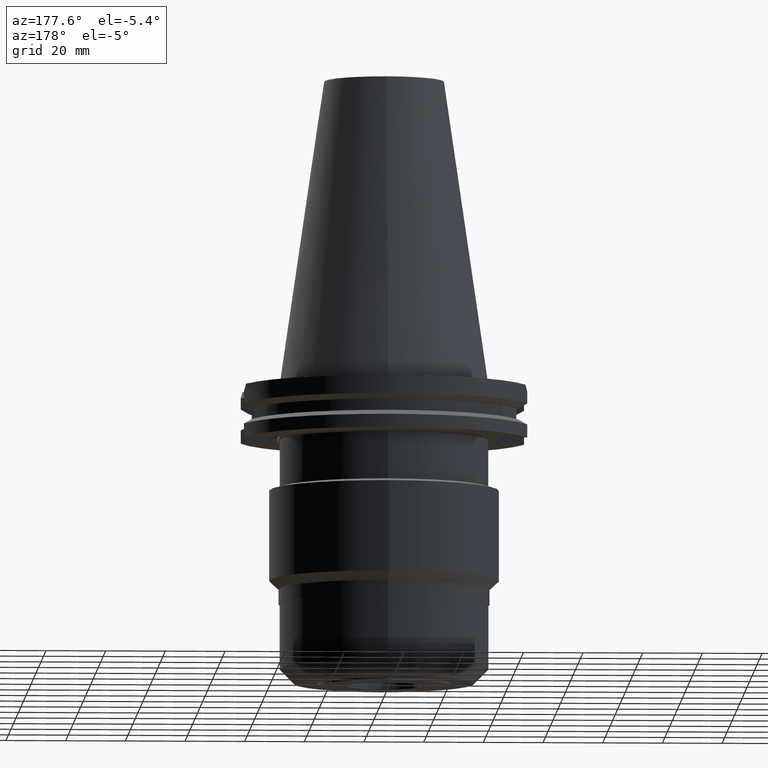
[diagram: clean part render]
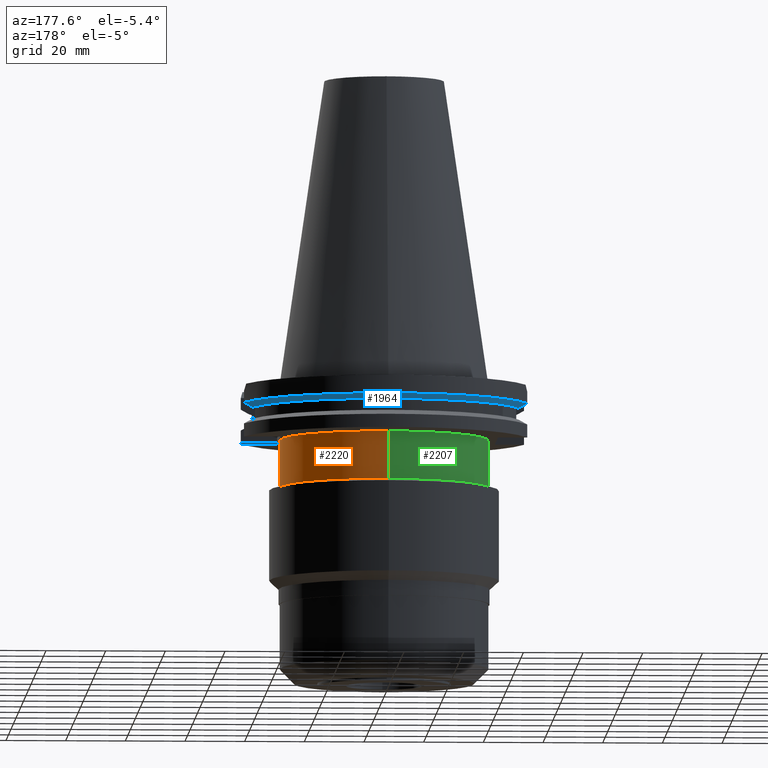
[diagram: same view with three faces highlighted in distinct colors, each labeled with its STEP entity id]
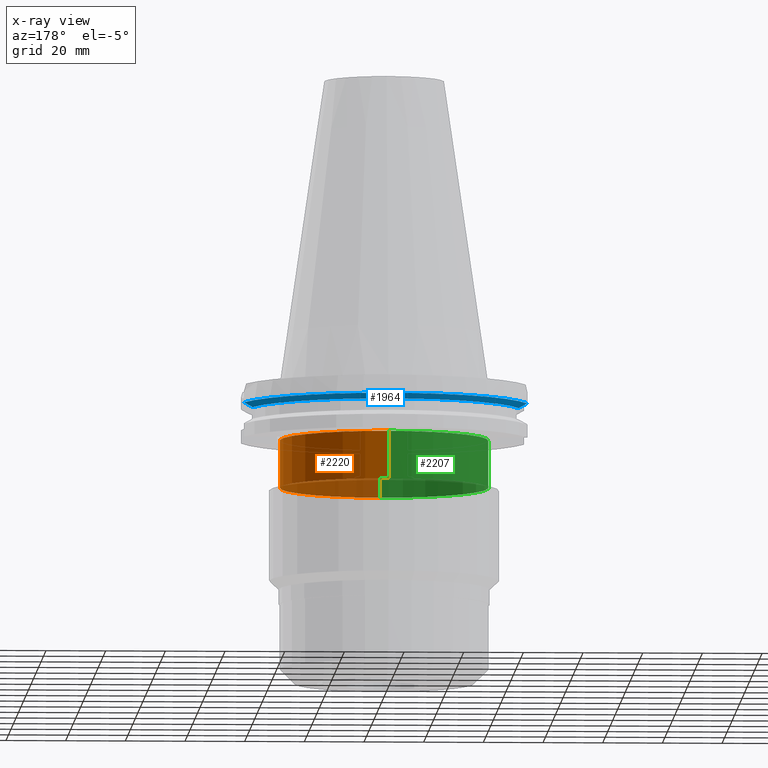
[diagram: x-ray of the same camera — body ghosted, the three highlighted faces saturated]
A machine part, auxiliary view with three faces highlighted in distinct colors.
The next image is the same camera in x-ray (body ghosted, the three faces saturated) — at least one of them is partly hidden behind the body in this view.
Their STEP definitions:

[orange] entity #2220 — the highlighted cylindrical surface (partial cylindrical patch) has radius 34.925 mm, axis along (0, 0, 1).
#259=CARTESIAN_POINT('',(0.E0,0.E0,-1.905E1));
#260=DIRECTION('',(0.E0,0.E0,-1.E0));
#261=DIRECTION('',(0.E0,1.E0,0.E0));
#262=AXIS2_PLACEMENT_3D('',#259,#260,#261);
#848=DIRECTION('',(0.E0,0.E0,-1.E0));
#849=VECTOR('',#848,1.595E1);
#850=CARTESIAN_POINT('',(0.E0,-3.4925E1,-1.905E1));
#851=LINE('',#850,#849);
#855=DIRECTION('',(0.E0,0.E0,-1.E0));
#856=VECTOR('',#855,1.595E1);
#857=CARTESIAN_POINT('',(0.E0,3.4925E1,-1.905E1));
#858=LINE('',#857,#856);
#877=CARTESIAN_POINT('',(0.E0,0.E0,-3.5E1));
#878=DIRECTION('',(0.E0,0.E0,1.E0));
#879=DIRECTION('',(0.E0,-1.E0,0.E0));
#880=AXIS2_PLACEMENT_3D('',#877,#878,#879);
#1424=CARTESIAN_POINT('',(0.E0,-3.4925E1,-1.905E1));
#1425=CARTESIAN_POINT('',(0.E0,3.4925E1,-1.905E1));
#1426=VERTEX_POINT('',#1424);
#1427=VERTEX_POINT('',#1425);
#1428=CARTESIAN_POINT('',(0.E0,3.4925E1,-3.5E1));
#1429=VERTEX_POINT('',#1428);
#1430=CARTESIAN_POINT('',(0.E0,-3.4925E1,-3.5E1));
#1431=VERTEX_POINT('',#1430);
#2208=CARTESIAN_POINT('',(0.E0,0.E0,-1.1176E2));
#2209=DIRECTION('',(0.E0,0.E0,1.E0));
#2210=DIRECTION('',(0.E0,1.E0,0.E0));
#2211=AXIS2_PLACEMENT_3D('',#2208,#2209,#2210);
#2212=CYLINDRICAL_SURFACE('',#2211,3.4925E1);
#2213=ORIENTED_EDGE('',*,*,#2198,.T.);
#2215=ORIENTED_EDGE('',*,*,#2214,.F.);
#2216=ORIENTED_EDGE('',*,*,#2201,.F.);
#2217=ORIENTED_EDGE('',*,*,#1746,.F.);
#2218=EDGE_LOOP('',(#2213,#2215,#2216,#2217));
#2219=FACE_OUTER_BOUND('',#2218,.F.);
#263=CIRCLE('',#262,3.4925E1);
#881=CIRCLE('',#880,3.4925E1);
#1746=EDGE_CURVE('',#1427,#1426,#263,.T.);
#2198=EDGE_CURVE('',#1427,#1429,#858,.T.);
#2201=EDGE_CURVE('',#1426,#1431,#851,.T.);
#2214=EDGE_CURVE('',#1431,#1429,#881,.T.);
#2220=ADVANCED_FACE('',(#2219),#2212,.T.);

[blue] entity #1964 — the highlighted conical surface has half-angle 60 deg.
#493=CARTESIAN_POINT('',(0.E0,0.E0,-9.207500000003E0));
#494=DIRECTION('',(0.E0,0.E0,1.E0));
#495=DIRECTION('',(9.602855947900E-1,2.790189535476E-1,0.E0));
#496=AXIS2_PLACEMENT_3D('',#493,#494,#495);
#501=CARTESIAN_POINT('',(0.E0,0.E0,-9.207500000003E0));
#502=DIRECTION('',(0.E0,0.E0,1.E0));
#503=DIRECTION('',(0.E0,1.E0,0.E0));
#504=AXIS2_PLACEMENT_3D('',#501,#502,#503);
#525=CARTESIAN_POINT('',(4.458657636813E1,1.2955E1,-9.207500000001E0));
#526=CARTESIAN_POINT('',(4.490806163993E1,1.2955E1,-9.029261766981E0));
#527=CARTESIAN_POINT('',(4.555077636711E1,1.2955E1,-8.672605903566E0));
#528=CARTESIAN_POINT('',(4.651414584907E1,1.2955E1,-8.137199213206E0));
#529=CARTESIAN_POINT('',(4.715593427837E1,1.2955E1,-7.780001752701E0));
#530=CARTESIAN_POINT('',(4.747671146204E1,1.2955E1,-7.601333230925E0));
#535=CARTESIAN_POINT('',(0.E0,0.E0,-7.601333230926E0));
#536=DIRECTION('',(0.E0,0.E0,1.E0));
#537=DIRECTION('',(9.647287063661E-1,2.632461264923E-1,0.E0));
#538=AXIS2_PLACEMENT_3D('',#535,#536,#537);
#543=CARTESIAN_POINT('',(0.E0,0.E0,-7.601333230926E0));
#544=DIRECTION('',(0.E0,0.E0,1.E0));
#545=DIRECTION('',(0.E0,1.E0,0.E0));
#546=AXIS2_PLACEMENT_3D('',#543,#544,#545);
#551=CARTESIAN_POINT('',(-4.747671146204E1,1.2955E1,-7.601333230925E0));
#552=CARTESIAN_POINT('',(-4.715593427836E1,1.2955E1,-7.780001752708E0));
#553=CARTESIAN_POINT('',(-4.651414584905E1,1.2955E1,-8.137199213222E0));
#554=CARTESIAN_POINT('',(-4.555077636708E1,1.2955E1,-8.672605903582E0));
#555=CARTESIAN_POINT('',(-4.490806163991E1,1.2955E1,-9.029261766988E0));
#556=CARTESIAN_POINT('',(-4.458657636813E1,1.2955E1,-9.207500000001E0));
#1510=CARTESIAN_POINT('',(4.747671146204E1,1.2955E1,-7.601333230925E0));
#1511=VERTEX_POINT('',#1510);
#1512=VERTEX_POINT('',#525);
#1530=CARTESIAN_POINT('',(-4.747671146204E1,1.2955E1,-7.601333230925E0));
#1531=VERTEX_POINT('',#1530);
#1532=CARTESIAN_POINT('',(0.E0,4.92125E1,-7.601333230926E0));
#1533=VERTEX_POINT('',#1532);
#1571=CARTESIAN_POINT('',(-4.458657636813E1,1.2955E1,-9.207500000001E0));
#1572=VERTEX_POINT('',#1571);
#1587=CARTESIAN_POINT('',(0.E0,4.643053755053E1,-9.207500000003E0));
#1588=VERTEX_POINT('',#1587);
#1951=CARTESIAN_POINT('',(0.E0,0.E0,-8.404416615464E0));
#1952=DIRECTION('',(0.E0,0.E0,1.E0));
#1953=DIRECTION('',(0.E0,1.E0,0.E0));
#1954=AXIS2_PLACEMENT_3D('',#1951,#1952,#1953);
#1955=CONICAL_SURFACE('',#1954,4.782151877527E1,6.E1);
#1956=ORIENTED_EDGE('',*,*,#1762,.T.);
#1957=ORIENTED_EDGE('',*,*,#1805,.T.);
#1958=ORIENTED_EDGE('',*,*,#1803,.T.);
#1959=ORIENTED_EDGE('',*,*,#1863,.T.);
#1960=ORIENTED_EDGE('',*,*,#1943,.F.);
#1961=ORIENTED_EDGE('',*,*,#1941,.F.);
#1962=EDGE_LOOP('',(#1956,#1957,#1958,#1959,#1960,#1961));
#1963=FACE_OUTER_BOUND('',#1962,.F.);
#497=CIRCLE('',#496,4.643053755053E1);
#505=CIRCLE('',#504,4.643053755053E1);
#531=B_SPLINE_CURVE_WITH_KNOTS('',3,(#525,#526,#527,#528,#529,#530),
.UNSPECIFIED.,.F.,.F.,(4,1,1,4),(0.E0,3.333333333333E-1,6.666666666667E-1,1.E0),
.UNSPECIFIED.);
#539=CIRCLE('',#538,4.92125E1);
#547=CIRCLE('',#546,4.92125E1);
#557=B_SPLINE_CURVE_WITH_KNOTS('',3,(#551,#552,#553,#554,#555,#556),
.UNSPECIFIED.,.F.,.F.,(4,1,1,4),(0.E0,3.333333333333E-1,6.666666666667E-1,1.E0),
.UNSPECIFIED.);
#1762=EDGE_CURVE('',#1512,#1511,#531,.T.);
#1803=EDGE_CURVE('',#1533,#1531,#547,.T.);
#1805=EDGE_CURVE('',#1511,#1533,#539,.T.);
#1863=EDGE_CURVE('',#1531,#1572,#557,.T.);
#1941=EDGE_CURVE('',#1512,#1588,#497,.T.);
#1943=EDGE_CURVE('',#1588,#1572,#505,.T.);
#1964=ADVANCED_FACE('',(#1963),#1955,.T.);

[green] entity #2207 — the highlighted cylindrical surface (partial cylindrical patch) has radius 34.925 mm, axis along (0, 0, 1).
#251=CARTESIAN_POINT('',(0.E0,0.E0,-1.905E1));
#252=DIRECTION('',(0.E0,0.E0,-1.E0));
#253=DIRECTION('',(0.E0,-1.E0,0.E0));
#254=AXIS2_PLACEMENT_3D('',#251,#252,#253);
#848=DIRECTION('',(0.E0,0.E0,-1.E0));
#849=VECTOR('',#848,1.595E1);
#850=CARTESIAN_POINT('',(0.E0,-3.4925E1,-1.905E1));
#851=LINE('',#850,#849);
#855=DIRECTION('',(0.E0,0.E0,-1.E0));
#856=VECTOR('',#855,1.595E1);
#857=CARTESIAN_POINT('',(0.E0,3.4925E1,-1.905E1));
#858=LINE('',#857,#856);
#885=CARTESIAN_POINT('',(0.E0,0.E0,-3.5E1));
#886=DIRECTION('',(0.E0,0.E0,1.E0));
#887=DIRECTION('',(0.E0,1.E0,0.E0));
#888=AXIS2_PLACEMENT_3D('',#885,#886,#887);
#1424=CARTESIAN_POINT('',(0.E0,-3.4925E1,-1.905E1));
#1425=CARTESIAN_POINT('',(0.E0,3.4925E1,-1.905E1));
#1426=VERTEX_POINT('',#1424);
#1427=VERTEX_POINT('',#1425);
#1428=CARTESIAN_POINT('',(0.E0,3.4925E1,-3.5E1));
#1429=VERTEX_POINT('',#1428);
#1430=CARTESIAN_POINT('',(0.E0,-3.4925E1,-3.5E1));
#1431=VERTEX_POINT('',#1430);
#2193=CARTESIAN_POINT('',(0.E0,0.E0,-1.1176E2));
#2194=DIRECTION('',(0.E0,0.E0,1.E0));
#2195=DIRECTION('',(0.E0,1.E0,0.E0));
#2196=AXIS2_PLACEMENT_3D('',#2193,#2194,#2195);
#2197=CYLINDRICAL_SURFACE('',#2196,3.4925E1);
#2199=ORIENTED_EDGE('',*,*,#2198,.F.);
#2200=ORIENTED_EDGE('',*,*,#1744,.F.);
#2202=ORIENTED_EDGE('',*,*,#2201,.T.);
#2204=ORIENTED_EDGE('',*,*,#2203,.F.);
#2205=EDGE_LOOP('',(#2199,#2200,#2202,#2204));
#2206=FACE_OUTER_BOUND('',#2205,.F.);
#255=CIRCLE('',#254,3.4925E1);
#889=CIRCLE('',#888,3.4925E1);
#1744=EDGE_CURVE('',#1426,#1427,#255,.T.);
#2198=EDGE_CURVE('',#1427,#1429,#858,.T.);
#2201=EDGE_CURVE('',#1426,#1431,#851,.T.);
#2203=EDGE_CURVE('',#1429,#1431,#889,.T.);
#2207=ADVANCED_FACE('',(#2206),#2197,.T.);